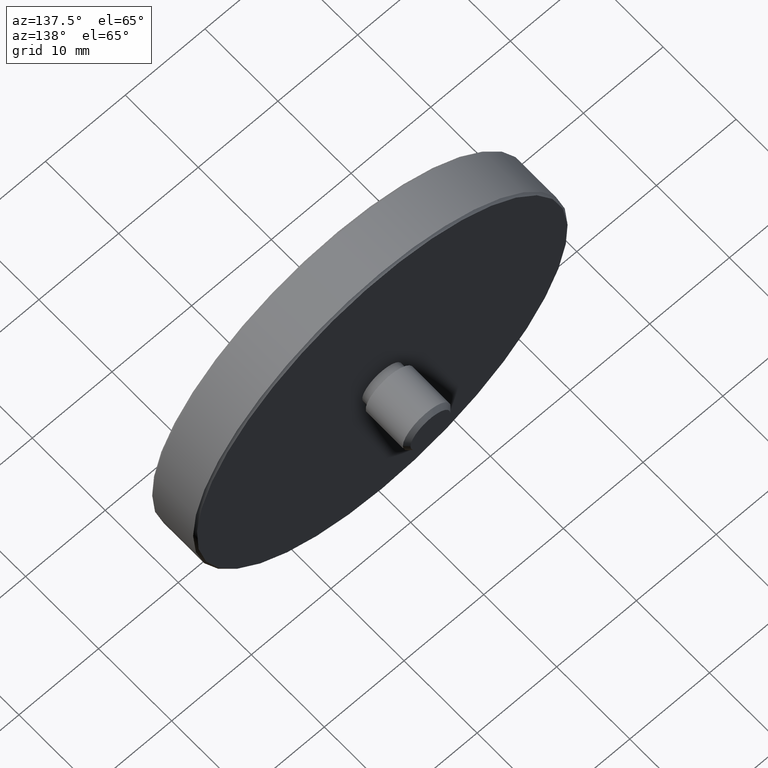
[diagram: clean part render]
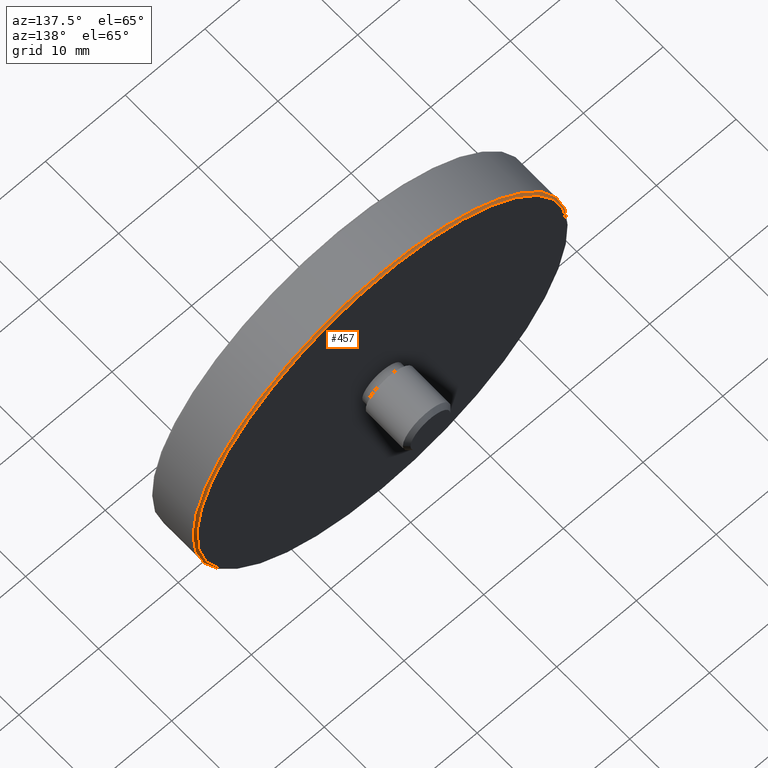
[diagram: same view with one face highlighted and labeled with its STEP entity id]
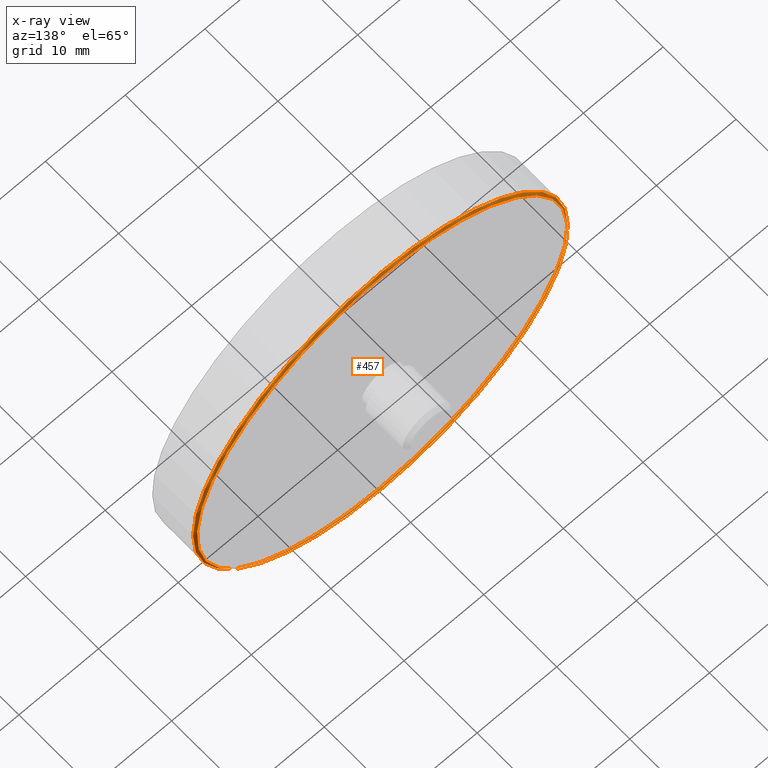
[diagram: x-ray of the same camera — body ghosted, the highlighted face saturated]
A machine part, auxiliary view. The second image highlights one B-rep face of the part: STEP entity #457.
The next image is the same camera in x-ray: the body ghosted, the highlighted face saturated — about 0% of this face is hidden behind the body in this view.
In plain terms, the highlighted conical surface has half-angle 45 deg.
Its self-contained STEP definition (entity closure, byte-faithful):
#74 = EDGE_LOOP ( 'NONE', ( #148 ) ) ;
#76 = VERTEX_POINT ( 'NONE', #615 ) ;
#108 = DIRECTION ( 'NONE',  ( -0.000000000000000000, 1.000000000000000000, -0.000000000000000000 ) ) ;
#148 = ORIENTED_EDGE ( 'NONE', *, *, #1133, .T. ) ;
#159 = DIRECTION ( 'NONE',  ( 0.000000000000000000, -7.381802025433222780E-17, -1.000000000000000000 ) ) ;
#192 = VERTEX_POINT ( 'NONE', #1017 ) ;
#202 = CARTESIAN_POINT ( 'NONE',  ( 0.000000000000000000, 5.849999999999992539, 0.000000000000000000 ) ) ;
#220 = CARTESIAN_POINT ( 'NONE',  ( 0.000000000000000000, 6.100000000000001421, 0.000000000000000000 ) ) ;
#284 = DIRECTION ( 'NONE',  ( 0.000000000000000000, -1.000000000000000000, 0.000000000000000000 ) ) ;
#323 = AXIS2_PLACEMENT_3D ( 'NONE', #456, #890, #159 ) ;
#345 = AXIS2_PLACEMENT_3D ( 'NONE', #220, #108, #1150 ) ;
#382 = AXIS2_PLACEMENT_3D ( 'NONE', #202, #284, #493 ) ;
#456 = CARTESIAN_POINT ( 'NONE',  ( 0.000000000000000000, 5.849999999999994316, 0.000000000000000000 ) ) ;
#457 = ADVANCED_FACE ( 'NONE', ( #1111, #805 ), #881, .T. ) ;
#493 = DIRECTION ( 'NONE',  ( 0.000000000000000000, 0.000000000000000000, -1.000000000000000000 ) ) ;
#518 = CIRCLE ( 'NONE', #323, 23.49999999999999645 ) ;
#615 = CARTESIAN_POINT ( 'NONE',  ( 0.000000000000000000, 6.100000000000001421, -23.24999999999998934 ) ) ;
#679 = EDGE_LOOP ( 'NONE', ( #928 ) ) ;
#805 = FACE_BOUND ( 'NONE', #679, .T. ) ;
#881 = CONICAL_SURFACE ( 'NONE', #382, 23.49999999999999645, 0.7853981633974415066 ) ;
#890 = DIRECTION ( 'NONE',  ( -0.000000000000000000, 1.000000000000000000, -0.000000000000000000 ) ) ;
#928 = ORIENTED_EDGE ( 'NONE', *, *, #939, .F. ) ;
#939 = EDGE_CURVE ( 'NONE', #76, #76, #1212, .T. ) ;
#1017 = CARTESIAN_POINT ( 'NONE',  ( 0.000000000000000000, 5.849999999999992539, -23.49999999999999645 ) ) ;
#1111 = FACE_OUTER_BOUND ( 'NONE', #74, .T. ) ;
#1133 = EDGE_CURVE ( 'NONE', #192, #192, #518, .T. ) ;
#1150 = DIRECTION ( 'NONE',  ( 0.000000000000000000, 0.000000000000000000, -1.000000000000000000 ) ) ;
#1212 = CIRCLE ( 'NONE', #345, 23.24999999999998934 ) ;